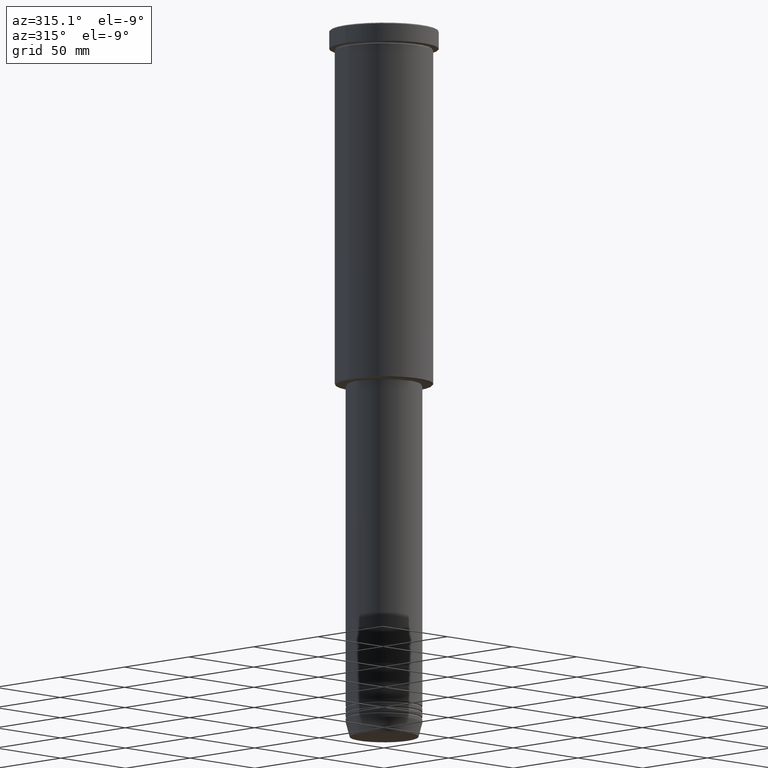
[diagram: clean part render]
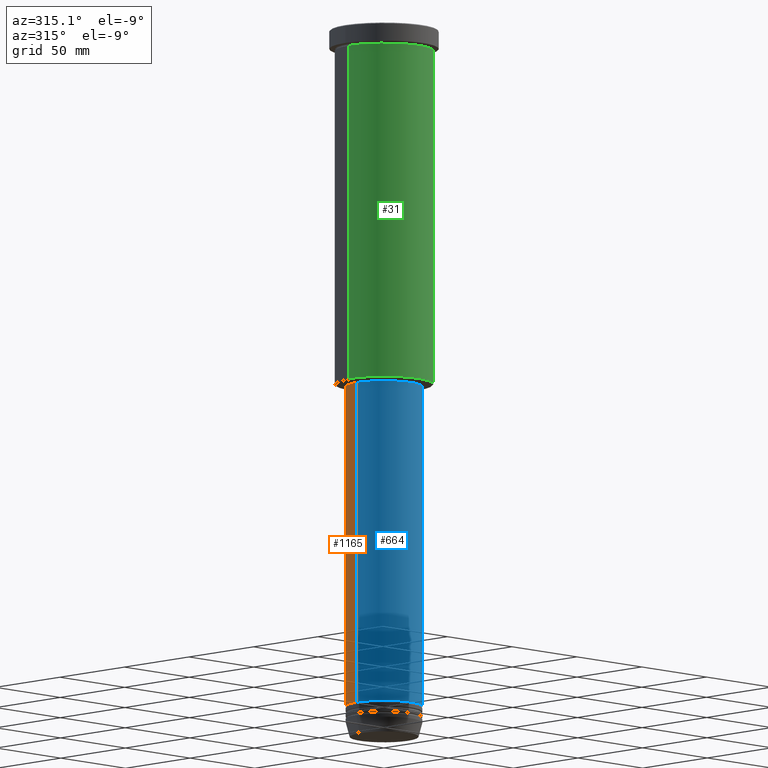
[diagram: same view with three faces highlighted in distinct colors, each labeled with its STEP entity id]
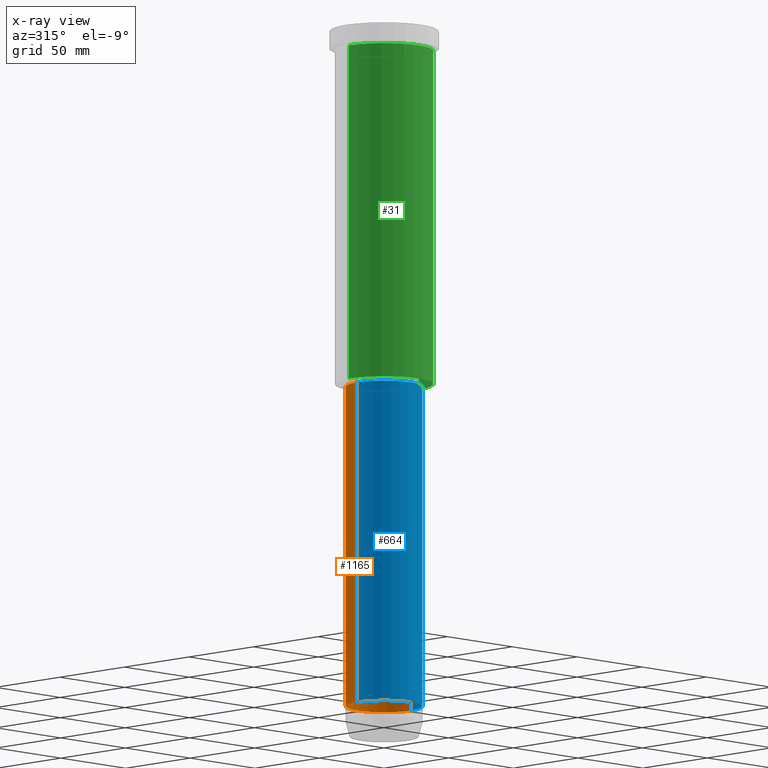
[diagram: x-ray of the same camera — body ghosted, the three highlighted faces saturated]
A machine part, auxiliary view with three faces highlighted in distinct colors.
The next image is the same camera in x-ray (body ghosted, the three faces saturated) — at least one of them is partly hidden behind the body in this view.
Their STEP definitions:

[orange] entity #1165 — the highlighted cylindrical surface (partial cylindrical patch) has radius 21 mm, axis along (-0, -0, 1).
#8 = ORIENTED_EDGE ( 'NONE', *, *, #383, .F. ) ;
#22 = CARTESIAN_POINT ( 'NONE',  ( 21.00000000000000000, 0.000000000000000000, 0.000000000000000000 ) ) ;
#56 = AXIS2_PLACEMENT_3D ( 'NONE', #395, #1118, #757 ) ;
#115 = DIRECTION ( 'NONE',  ( -0.000000000000000000, -0.000000000000000000, 1.000000000000000000 ) ) ;
#138 = VERTEX_POINT ( 'NONE', #640 ) ;
#149 = CIRCLE ( 'NONE', #56, 21.00000000000000000 ) ;
#153 = FACE_OUTER_BOUND ( 'NONE', #735, .T. ) ;
#289 = CARTESIAN_POINT ( 'NONE',  ( 21.00000000000000000, 0.000000000000000000, -196.9999999999998579 ) ) ;
#310 = VERTEX_POINT ( 'NONE', #289 ) ;
#317 = DIRECTION ( 'NONE',  ( 1.000000000000000000, 0.000000000000000000, 0.000000000000000000 ) ) ;
#383 = EDGE_CURVE ( 'NONE', #310, #138, #1026, .T. ) ;
#395 = CARTESIAN_POINT ( 'NONE',  ( 0.000000000000000000, 0.000000000000000000, -374.0000000000000000 ) ) ;
#401 = CARTESIAN_POINT ( 'NONE',  ( 0.000000000000000000, 0.000000000000000000, -196.9999999999998579 ) ) ;
#444 = EDGE_CURVE ( 'NONE', #878, #310, #503, .T. ) ;
#474 = CARTESIAN_POINT ( 'NONE',  ( -21.00000000000000000, 2.571758278209441661E-15, -374.0000000000000000 ) ) ;
#503 = LINE ( 'NONE', #22, #751 ) ;
#510 = CARTESIAN_POINT ( 'NONE',  ( -21.00000000000000000, 2.571758278209441661E-15, 0.000000000000000000 ) ) ;
#524 = AXIS2_PLACEMENT_3D ( 'NONE', #401, #115, #317 ) ;
#535 = CYLINDRICAL_SURFACE ( 'NONE', #1110, 21.00000000000000000 ) ;
#553 = CARTESIAN_POINT ( 'NONE',  ( 0.000000000000000000, 0.000000000000000000, 0.000000000000000000 ) ) ;
#555 = ORIENTED_EDGE ( 'NONE', *, *, #594, .T. ) ;
#567 = CARTESIAN_POINT ( 'NONE',  ( 21.00000000000000000, 0.000000000000000000, -374.0000000000000000 ) ) ;
#594 = EDGE_CURVE ( 'NONE', #916, #138, #691, .T. ) ;
#640 = CARTESIAN_POINT ( 'NONE',  ( -21.00000000000000000, 2.571758278209441661E-15, -196.9999999999998579 ) ) ;
#691 = LINE ( 'NONE', #510, #1100 ) ;
#735 = EDGE_LOOP ( 'NONE', ( #1162, #555, #8, #1064 ) ) ;
#737 = DIRECTION ( 'NONE',  ( -0.000000000000000000, -0.000000000000000000, 1.000000000000000000 ) ) ;
#751 = VECTOR ( 'NONE', #952, 1000.000000000000000 ) ;
#757 = DIRECTION ( 'NONE',  ( 1.000000000000000000, 0.000000000000000000, 0.000000000000000000 ) ) ;
#799 = DIRECTION ( 'NONE',  ( -0.000000000000000000, -0.000000000000000000, 1.000000000000000000 ) ) ;
#814 = DIRECTION ( 'NONE',  ( 1.000000000000000000, 0.000000000000000000, 0.000000000000000000 ) ) ;
#821 = EDGE_CURVE ( 'NONE', #878, #916, #149, .T. ) ;
#878 = VERTEX_POINT ( 'NONE', #567 ) ;
#916 = VERTEX_POINT ( 'NONE', #474 ) ;
#952 = DIRECTION ( 'NONE',  ( -0.000000000000000000, -0.000000000000000000, 1.000000000000000000 ) ) ;
#1026 = CIRCLE ( 'NONE', #524, 21.00000000000000000 ) ;
#1064 = ORIENTED_EDGE ( 'NONE', *, *, #444, .F. ) ;
#1100 = VECTOR ( 'NONE', #799, 1000.000000000000000 ) ;
#1110 = AXIS2_PLACEMENT_3D ( 'NONE', #553, #737, #814 ) ;
#1118 = DIRECTION ( 'NONE',  ( -0.000000000000000000, -0.000000000000000000, 1.000000000000000000 ) ) ;
#1162 = ORIENTED_EDGE ( 'NONE', *, *, #821, .T. ) ;
#1165 = ADVANCED_FACE ( 'NONE', ( #153 ), #535, .T. ) ;

[blue] entity #664 — the highlighted cylindrical surface (partial cylindrical patch) has radius 21 mm, axis along (-0, -0, 1).
#22 = CARTESIAN_POINT ( 'NONE',  ( 21.00000000000000000, 0.000000000000000000, 0.000000000000000000 ) ) ;
#41 = CARTESIAN_POINT ( 'NONE',  ( 0.000000000000000000, 0.000000000000000000, -374.0000000000000000 ) ) ;
#76 = ORIENTED_EDGE ( 'NONE', *, *, #444, .T. ) ;
#94 = CARTESIAN_POINT ( 'NONE',  ( 0.000000000000000000, 0.000000000000000000, -196.9999999999998579 ) ) ;
#128 = DIRECTION ( 'NONE',  ( -0.000000000000000000, -0.000000000000000000, 1.000000000000000000 ) ) ;
#131 = EDGE_LOOP ( 'NONE', ( #146, #680, #76, #481 ) ) ;
#138 = VERTEX_POINT ( 'NONE', #640 ) ;
#146 = ORIENTED_EDGE ( 'NONE', *, *, #594, .F. ) ;
#174 = AXIS2_PLACEMENT_3D ( 'NONE', #41, #1123, #614 ) ;
#289 = CARTESIAN_POINT ( 'NONE',  ( 21.00000000000000000, 0.000000000000000000, -196.9999999999998579 ) ) ;
#310 = VERTEX_POINT ( 'NONE', #289 ) ;
#432 = AXIS2_PLACEMENT_3D ( 'NONE', #1131, #128, #516 ) ;
#444 = EDGE_CURVE ( 'NONE', #878, #310, #503, .T. ) ;
#474 = CARTESIAN_POINT ( 'NONE',  ( -21.00000000000000000, 2.571758278209441661E-15, -374.0000000000000000 ) ) ;
#481 = ORIENTED_EDGE ( 'NONE', *, *, #828, .F. ) ;
#503 = LINE ( 'NONE', #22, #751 ) ;
#510 = CARTESIAN_POINT ( 'NONE',  ( -21.00000000000000000, 2.571758278209441661E-15, 0.000000000000000000 ) ) ;
#516 = DIRECTION ( 'NONE',  ( 1.000000000000000000, 0.000000000000000000, 0.000000000000000000 ) ) ;
#532 = CIRCLE ( 'NONE', #1088, 21.00000000000000000 ) ;
#567 = CARTESIAN_POINT ( 'NONE',  ( 21.00000000000000000, 0.000000000000000000, -374.0000000000000000 ) ) ;
#594 = EDGE_CURVE ( 'NONE', #916, #138, #691, .T. ) ;
#614 = DIRECTION ( 'NONE',  ( 1.000000000000000000, 0.000000000000000000, 0.000000000000000000 ) ) ;
#640 = CARTESIAN_POINT ( 'NONE',  ( -21.00000000000000000, 2.571758278209441661E-15, -196.9999999999998579 ) ) ;
#659 = DIRECTION ( 'NONE',  ( -0.000000000000000000, -0.000000000000000000, 1.000000000000000000 ) ) ;
#664 = ADVANCED_FACE ( 'NONE', ( #962 ), #781, .T. ) ;
#680 = ORIENTED_EDGE ( 'NONE', *, *, #981, .T. ) ;
#691 = LINE ( 'NONE', #510, #1100 ) ;
#751 = VECTOR ( 'NONE', #952, 1000.000000000000000 ) ;
#781 = CYLINDRICAL_SURFACE ( 'NONE', #432, 21.00000000000000000 ) ;
#799 = DIRECTION ( 'NONE',  ( -0.000000000000000000, -0.000000000000000000, 1.000000000000000000 ) ) ;
#828 = EDGE_CURVE ( 'NONE', #138, #310, #532, .T. ) ;
#845 = DIRECTION ( 'NONE',  ( 1.000000000000000000, 0.000000000000000000, 0.000000000000000000 ) ) ;
#878 = VERTEX_POINT ( 'NONE', #567 ) ;
#916 = VERTEX_POINT ( 'NONE', #474 ) ;
#952 = DIRECTION ( 'NONE',  ( -0.000000000000000000, -0.000000000000000000, 1.000000000000000000 ) ) ;
#962 = FACE_OUTER_BOUND ( 'NONE', #131, .T. ) ;
#981 = EDGE_CURVE ( 'NONE', #916, #878, #1146, .T. ) ;
#1088 = AXIS2_PLACEMENT_3D ( 'NONE', #94, #659, #845 ) ;
#1100 = VECTOR ( 'NONE', #799, 1000.000000000000000 ) ;
#1123 = DIRECTION ( 'NONE',  ( -0.000000000000000000, -0.000000000000000000, 1.000000000000000000 ) ) ;
#1131 = CARTESIAN_POINT ( 'NONE',  ( 0.000000000000000000, 0.000000000000000000, 0.000000000000000000 ) ) ;
#1146 = CIRCLE ( 'NONE', #174, 21.00000000000000000 ) ;

[green] entity #31 — the highlighted cylindrical surface (partial cylindrical patch) has radius 27 mm, axis along (-0, -0, 1).
#31 = ADVANCED_FACE ( 'NONE', ( #802 ), #57, .T. ) ;
#57 = CYLINDRICAL_SURFACE ( 'NONE', #716, 27.00000000000000355 ) ;
#64 = DIRECTION ( 'NONE',  ( -0.000000000000000000, -0.000000000000000000, 1.000000000000000000 ) ) ;
#81 = AXIS2_PLACEMENT_3D ( 'NONE', #244, #145, #486 ) ;
#96 = EDGE_CURVE ( 'NONE', #562, #200, #939, .T. ) ;
#120 = CARTESIAN_POINT ( 'NONE',  ( -27.00000000000000355, 3.306546357697854128E-15, -10.99999999999999289 ) ) ;
#145 = DIRECTION ( 'NONE',  ( -0.000000000000000000, -0.000000000000000000, 1.000000000000000000 ) ) ;
#154 = DIRECTION ( 'NONE',  ( -0.000000000000000000, -0.000000000000000000, 1.000000000000000000 ) ) ;
#157 = DIRECTION ( 'NONE',  ( 1.000000000000000000, 0.000000000000000000, 0.000000000000000000 ) ) ;
#169 = LINE ( 'NONE', #898, #274 ) ;
#200 = VERTEX_POINT ( 'NONE', #292 ) ;
#218 = EDGE_CURVE ( 'NONE', #1043, #753, #437, .T. ) ;
#225 = EDGE_LOOP ( 'NONE', ( #1119, #475, #678, #780 ) ) ;
#244 = CARTESIAN_POINT ( 'NONE',  ( 0.000000000000000000, 0.000000000000000000, -195.5000000000000284 ) ) ;
#274 = VECTOR ( 'NONE', #64, 1000.000000000000000 ) ;
#292 = CARTESIAN_POINT ( 'NONE',  ( 27.00000000000000355, 0.000000000000000000, -195.5000000000000284 ) ) ;
#437 = CIRCLE ( 'NONE', #711, 27.00000000000000355 ) ;
#475 = ORIENTED_EDGE ( 'NONE', *, *, #96, .T. ) ;
#486 = DIRECTION ( 'NONE',  ( -1.000000000000000000, 0.000000000000000000, 0.000000000000000000 ) ) ;
#557 = EDGE_CURVE ( 'NONE', #200, #753, #1042, .T. ) ;
#562 = VERTEX_POINT ( 'NONE', #958 ) ;
#631 = CARTESIAN_POINT ( 'NONE',  ( 27.00000000000000355, 0.000000000000000000, -10.99999999999999289 ) ) ;
#678 = ORIENTED_EDGE ( 'NONE', *, *, #557, .T. ) ;
#686 = CARTESIAN_POINT ( 'NONE',  ( 27.00000000000000355, 0.000000000000000000, 0.000000000000000000 ) ) ;
#711 = AXIS2_PLACEMENT_3D ( 'NONE', #826, #1170, #157 ) ;
#716 = AXIS2_PLACEMENT_3D ( 'NONE', #1161, #154, #1155 ) ;
#739 = EDGE_CURVE ( 'NONE', #562, #1043, #169, .T. ) ;
#753 = VERTEX_POINT ( 'NONE', #631 ) ;
#780 = ORIENTED_EDGE ( 'NONE', *, *, #218, .F. ) ;
#802 = FACE_OUTER_BOUND ( 'NONE', #225, .T. ) ;
#826 = CARTESIAN_POINT ( 'NONE',  ( 0.000000000000000000, 0.000000000000000000, -10.99999999999999289 ) ) ;
#898 = CARTESIAN_POINT ( 'NONE',  ( -27.00000000000000355, 3.306546357697854128E-15, 0.000000000000000000 ) ) ;
#939 = CIRCLE ( 'NONE', #81, 27.00000000000000355 ) ;
#958 = CARTESIAN_POINT ( 'NONE',  ( -27.00000000000000355, 3.306546357697854128E-15, -195.5000000000000284 ) ) ;
#1042 = LINE ( 'NONE', #686, #1156 ) ;
#1043 = VERTEX_POINT ( 'NONE', #120 ) ;
#1119 = ORIENTED_EDGE ( 'NONE', *, *, #739, .F. ) ;
#1143 = DIRECTION ( 'NONE',  ( -0.000000000000000000, -0.000000000000000000, 1.000000000000000000 ) ) ;
#1155 = DIRECTION ( 'NONE',  ( 1.000000000000000000, 0.000000000000000000, 0.000000000000000000 ) ) ;
#1156 = VECTOR ( 'NONE', #1143, 1000.000000000000000 ) ;
#1161 = CARTESIAN_POINT ( 'NONE',  ( 0.000000000000000000, 0.000000000000000000, 0.000000000000000000 ) ) ;
#1170 = DIRECTION ( 'NONE',  ( -0.000000000000000000, -0.000000000000000000, 1.000000000000000000 ) ) ;